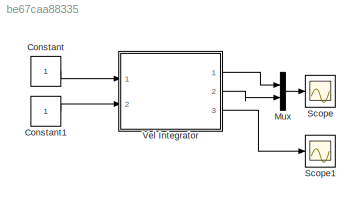
MODEL slx_be67caa88335
KIND model
CONFIG AbsTol = auto
CONFIG EnableMultiTasking = off
CONFIG FixedStep = auto
CONFIG MaxStep = auto
CONFIG MinStep = auto
CONFIG RelTol = 1e-3
CONFIG SampleTimeConstraint = Unconstrained
CONFIG Solver = VariableStepAuto
CONFIG SolverName = VariableStepAuto
CONFIG StartTime = 0.0
CONFIG StopTime = 10.0
BLOCK [Constant] Constant
BLOCK [Constant] Constant1
BLOCK [Mux] Mux
  DisplayOption = bar
  Inputs = 2
  Ports = [2, 1]
BLOCK [Scope] Scope
  Floating = off
  NumInputPorts = 1
  Ports = [1]
  ScopeSpecificationString = Simulink.scopes.TimeScopeBlockCfg('CurrentConfiguration', extmgr.ConfigurationSet(extmgr.Configuration('Core','General UI',true),extmgr.Configuration('Core','Source UI',true),extmgr.Configuration('Sources','WiredSimulink',true),extmgr.Configuration('Visuals','Time Domain',true,'SerializedDisplays',{struct('MinYLimReal','-1.37387','MaxYLimReal','2.37474','YLabelReal','','MinYLimMag','0.00000','MaxY...<+1355ch>
BLOCK [Scope] Scope1
  Floating = off
  NumInputPorts = 1
  Ports = [1]
  ScopeSpecificationString = Simulink.scopes.TimeScopeBlockCfg('CurrentConfiguration', extmgr.ConfigurationSet(extmgr.Configuration('Core','General UI',true),extmgr.Configuration('Core','Source UI',true),extmgr.Configuration('Sources','WiredSimulink',true,'DataLoggingVariableName','ScopeData1'),extmgr.Configuration('Visuals','Time Domain',true,'SerializedDisplays',{struct('MinYLimReal','-1.25','MaxYLimReal','11.25','YLabelRea...<+1361ch>
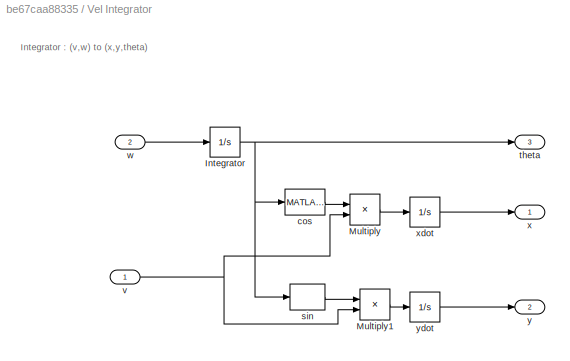
BLOCK [SubSystem] Vel Integrator
  Ports = [2, 3]
  RequestExecContextInheritance = off
BLOCK [Integrator] Vel Integrator/Integrator
  InitialCondition = theta_0
  Ports = [1, 1]
BLOCK [Product] Vel Integrator/Multiply
  InputSameDT = off
  OutDataTypeStr = Inherit: Inherit via internal rule
  Ports = [2, 1]
  RndMeth = Floor
  SaturateOnIntegerOverflow = off
BLOCK [Product] Vel Integrator/Multiply1
  InputSameDT = off
  OutDataTypeStr = Inherit: Inherit via internal rule
  Ports = [2, 1]
  RndMeth = Floor
  SaturateOnIntegerOverflow = off
BLOCK [MATLABFcn] Vel Integrator/cos
  MATLABFcn = cos(u)
  Ports = [1, 1]
BLOCK [MATLABFcn] Vel Integrator/sin
  MATLABFcn = sin(u)
  Ports = [1, 1]
BLOCK [Outport] Vel Integrator/theta
  IconDisplay = Port number
  Port = 3
BLOCK [Inport] Vel Integrator/v
  IconDisplay = Port number
BLOCK [Inport] Vel Integrator/w
  IconDisplay = Port number
  Port = 2
BLOCK [Outport] Vel Integrator/x
  IconDisplay = Port number
BLOCK [Integrator] Vel Integrator/xdot
  InitialCondition = x_0
  Ports = [1, 1]
BLOCK [Outport] Vel Integrator/y
  IconDisplay = Port number
  Port = 2
BLOCK [Integrator] Vel Integrator/ydot
  InitialCondition = x_0
  Ports = [1, 1]
ANNOTATION Vel Integrator: Integrator : (v,w) to (x,y,theta)
LINE Constant1:1 -> Vel Integrator:2
LINE Constant:1 -> Vel Integrator:1
LINE Mux:1 -> Scope:1
NET Vel Integrator/Integrator:1 -> Vel Integrator/cos:1, Vel Integrator/sin:1, Vel Integrator/theta:1
LINE Vel Integrator/Multiply1:1 -> Vel Integrator/ydot:1
LINE Vel Integrator/Multiply:1 -> Vel Integrator/xdot:1
LINE Vel Integrator/cos:1 -> Vel Integrator/Multiply:1
LINE Vel Integrator/sin:1 -> Vel Integrator/Multiply1:1
NET Vel Integrator/v:1 -> Vel Integrator/Multiply1:2, Vel Integrator/Multiply:2
LINE Vel Integrator/w:1 -> Vel Integrator/Integrator:1
LINE Vel Integrator/xdot:1 -> Vel Integrator/x:1
LINE Vel Integrator/ydot:1 -> Vel Integrator/y:1
LINE Vel Integrator:1 -> Mux:1
LINE Vel Integrator:2 -> Mux:2
LINE Vel Integrator:3 -> Scope1:1
note: NET lines group one-source signal fan-out (src -> all destinations, sorted); 1:1 wires keep LINE
